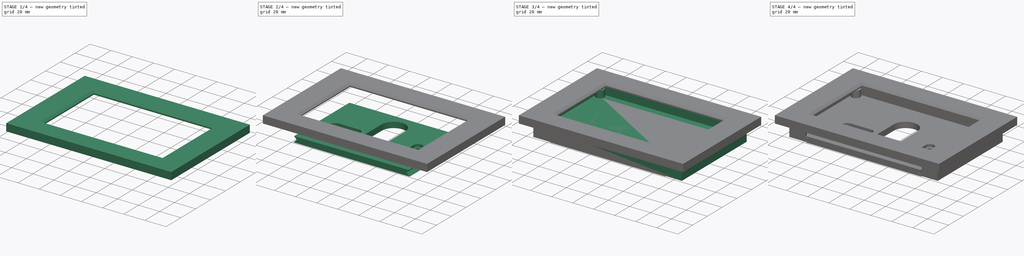
[diagram: build sequence overview — one tinted view per stage of 4, left to right]
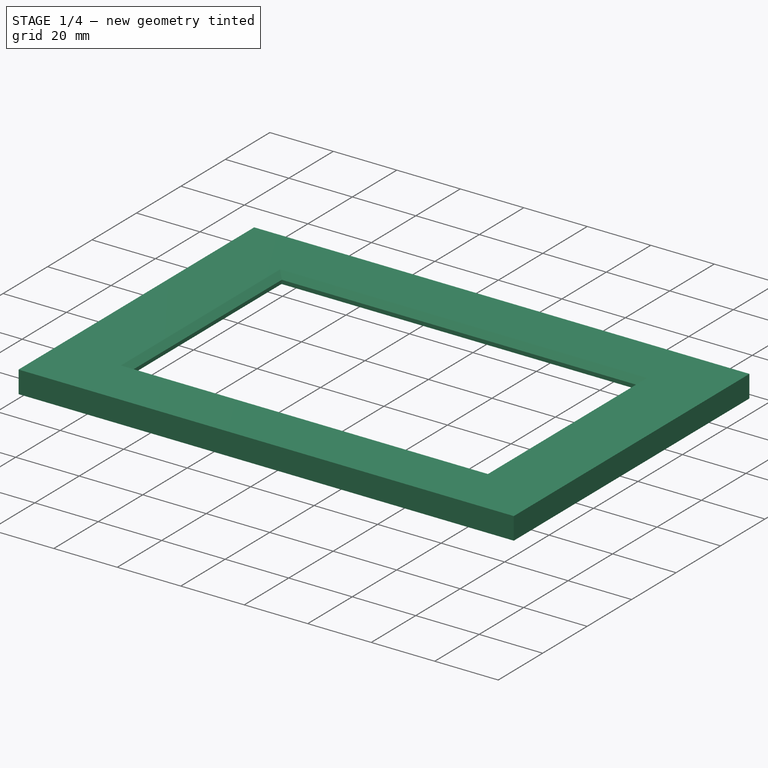
[diagram: stage 1 of 4 — iso view after this stage's code; geometry added in this stage tinted green]
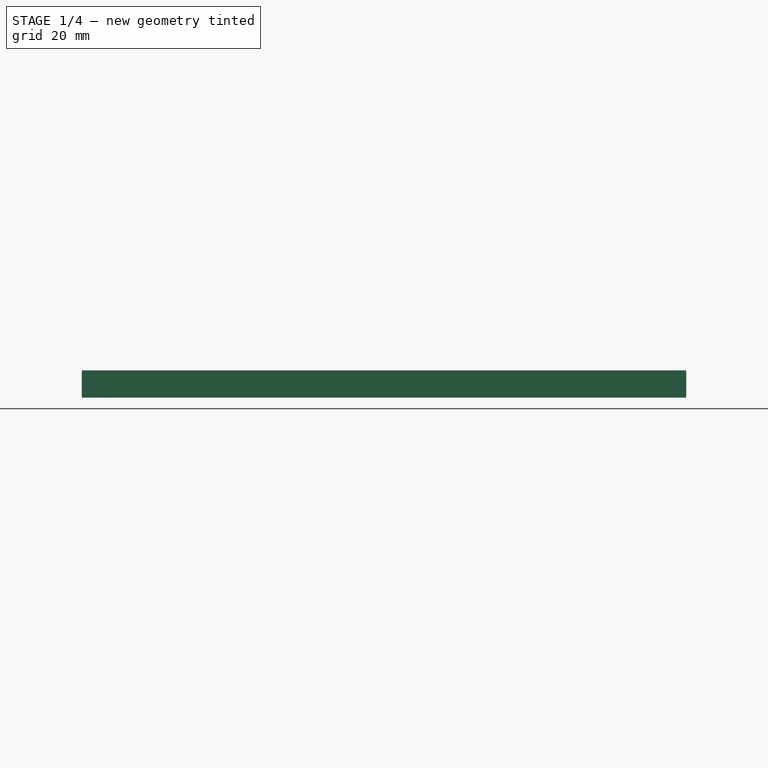
[diagram: stage 1 of 4 — front view after this stage's code; geometry added in this stage tinted green]
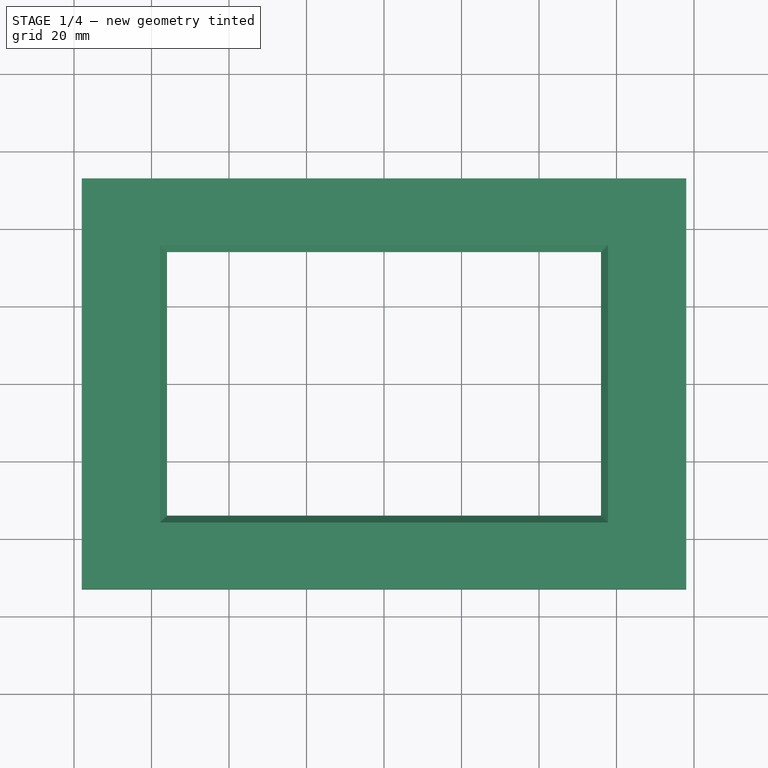
[diagram: stage 1 of 4 — top view after this stage's code; geometry added in this stage tinted green]
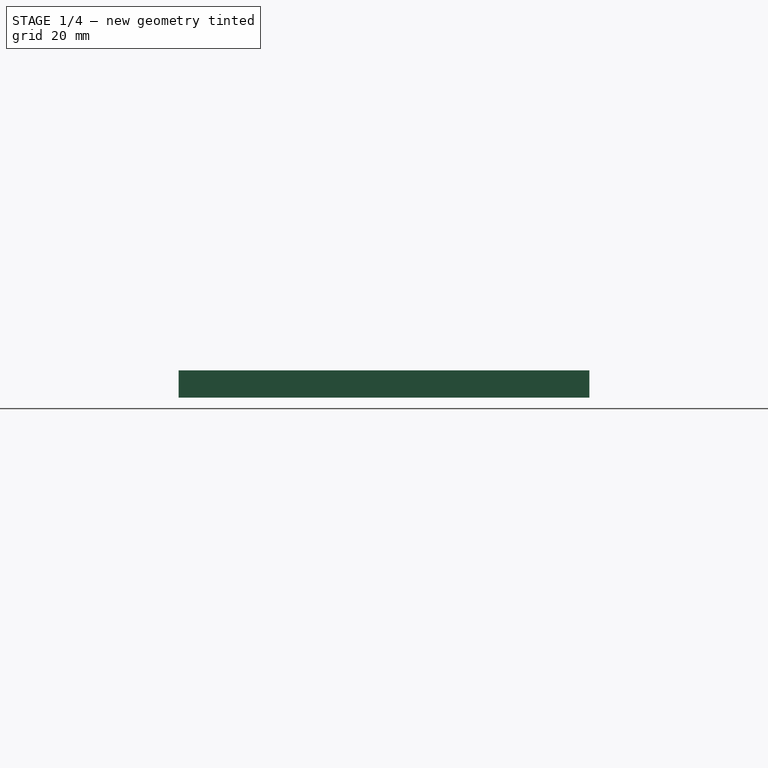
[diagram: stage 1 of 4 — right view after this stage's code; geometry added in this stage tinted green]
FCSTD DOCUMENT  (FreeCAD 0.19R)
Label: 3v2
License: All rights reserved
LicenseURL: http://en.wikipedia.org/wiki/All_rights_reserved
objects: Sketcher::SketchObject×12, PartDesign::Pocket×9, PartDesign::Pad×3, PartDesign::Body×3, PartDesign::Chamfer×1
note: 41 computed .brp shape members not serialized (recipe doc carries the construction recipe); baked Part::Feature solids carry a one-line shape summary decoded from their .brp

FEATURE [Sketcher::SketchObject] Sketch
  FullyConstrained = true
  MapMode = 5
  Support = -> [XY_Plane]
  sketch-geometry (8):
    g0: LineSegment StartX=-78 StartY=53 StartZ=0 EndX=78 EndY=53 EndZ=0
    g1: LineSegment StartX=78 StartY=53 StartZ=0 EndX=78 EndY=-53 EndZ=0
    g2: LineSegment StartX=78 StartY=-53 StartZ=0 EndX=-78 EndY=-53 EndZ=0
    g3: LineSegment StartX=-78 StartY=-53 StartZ=0 EndX=-78 EndY=53 EndZ=0
    g4: LineSegment StartX=-56 StartY=34 StartZ=0 EndX=56 EndY=34 EndZ=0
    g5: LineSegment StartX=56 StartY=34 StartZ=0 EndX=56 EndY=-34 EndZ=0
    g6: LineSegment StartX=56 StartY=-34 StartZ=0 EndX=-56 EndY=-34 EndZ=0
    g7: LineSegment StartX=-56 StartY=-34 StartZ=0 EndX=-56 EndY=34 EndZ=0
  constraints (20):
    c: Coincident(g0,g1)
    c: Coincident(g1,g2)
    c: Coincident(g2,g3)
    c: Coincident(g3,g0)
    c: Horizontal(g2)
    c: Vertical(g3)
    c: DistanceY(g3,g3) = 106
    c: DistanceX(g0,g0) = 156
    c: Symmetric(g0,g0,g-2)
    c: Symmetric(g0,g1,g-1)
    c: Coincident(g4,g5)
    c: Coincident(g5,g6)
    c: Coincident(g6,g7)
    c: Coincident(g7,g4)
    c: Horizontal(g6)
    c: Vertical(g5)
    c: Symmetric(g4,g6,g-1)
    c: Symmetric(g4,g4,g-2)
    c: DistanceX(g4,g4) = 112
    c: DistanceY(g5,g5) = 68
FEATURE [PartDesign::Pad] Pad
  Direction = (1,1,1)
  Length = 7
  Length2 = 100
  Profile = -> Sketch
  Type = 0
FEATURE [PartDesign::Body] Body002  label="mount"
  Group = -> [Sketch011,Pad002,Sketch012,Pocket008,Sketch013,Pocket009]
  Origin = -> Origin002
  Tip = -> Pocket009
FEATURE [PartDesign::Pocket] Pocket
  BaseFeature = -> Pad
  Length = 5
  Length2 = 100
  Profile = -> Sketch002
  Type = 0
FEATURE [PartDesign::Chamfer] Chamfer
  Angle = 45
  Base = -> Pocket [Edge21,Edge24,Edge23,Edge22]
  BaseFeature = -> Pocket
  ChamferType = 0
  FlipDirection = false
  Size = 1.8
  Size2 = 1
  SupportTransform = false
FEATURE [PartDesign::Body] Body  label="Front"
  Group = -> [Sketch,Pad,Sketch002,Pocket,Chamfer]
  Origin = -> Origin
  Tip = -> Chamfer
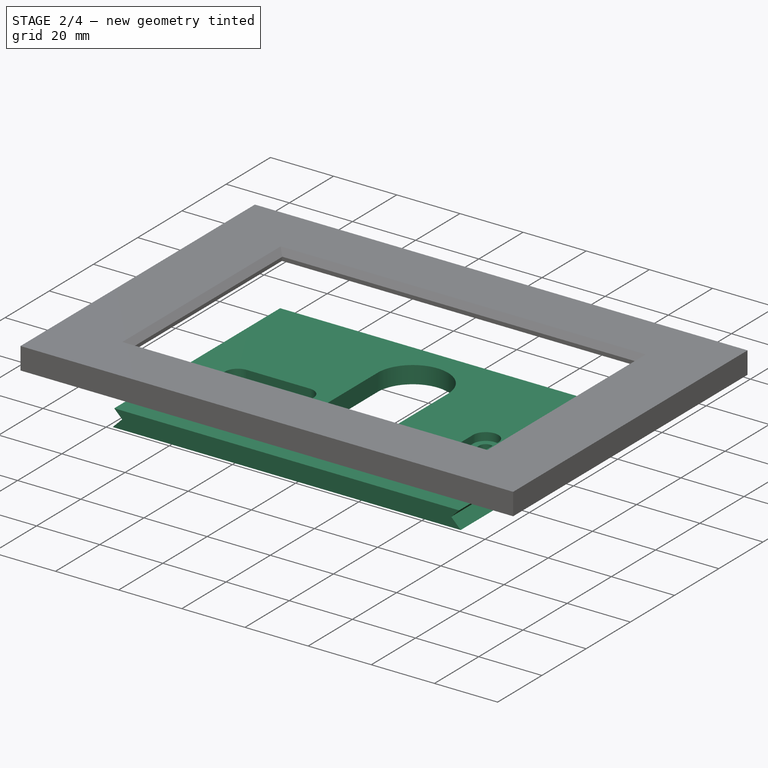
[diagram: stage 2 of 4 — iso view after this stage's code; geometry added in this stage tinted green]
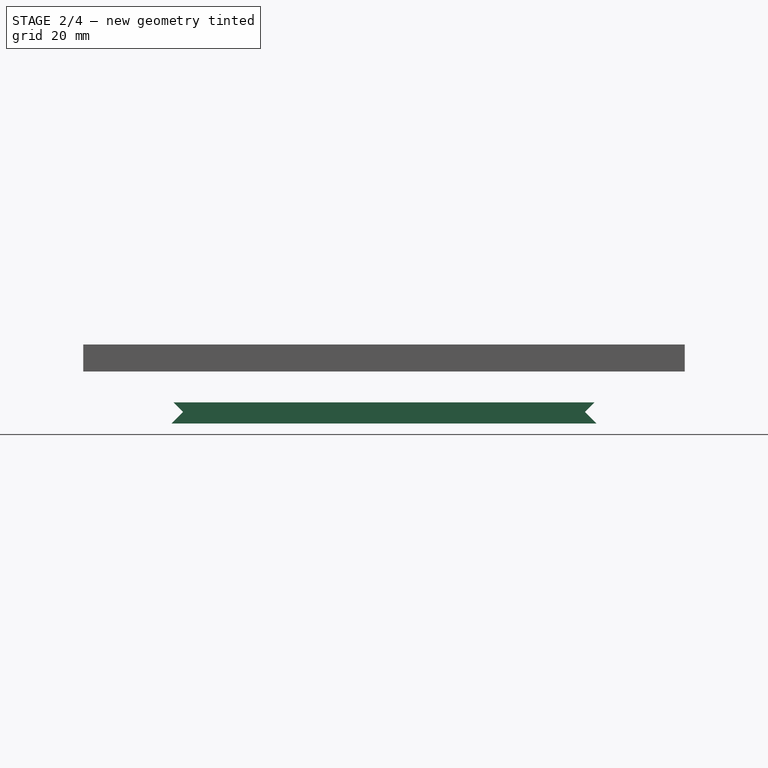
[diagram: stage 2 of 4 — front view after this stage's code; geometry added in this stage tinted green]
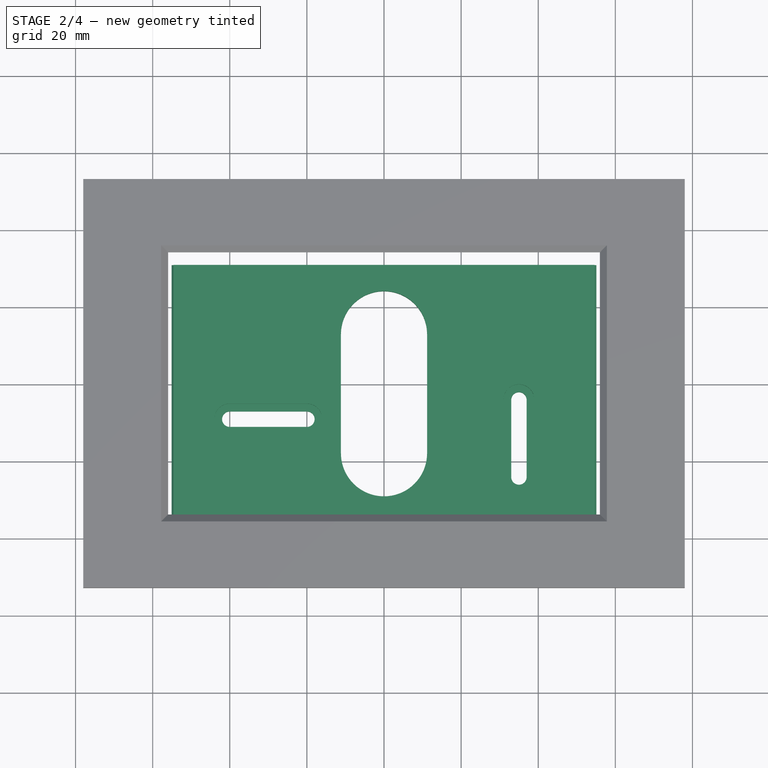
[diagram: stage 2 of 4 — top view after this stage's code; geometry added in this stage tinted green]
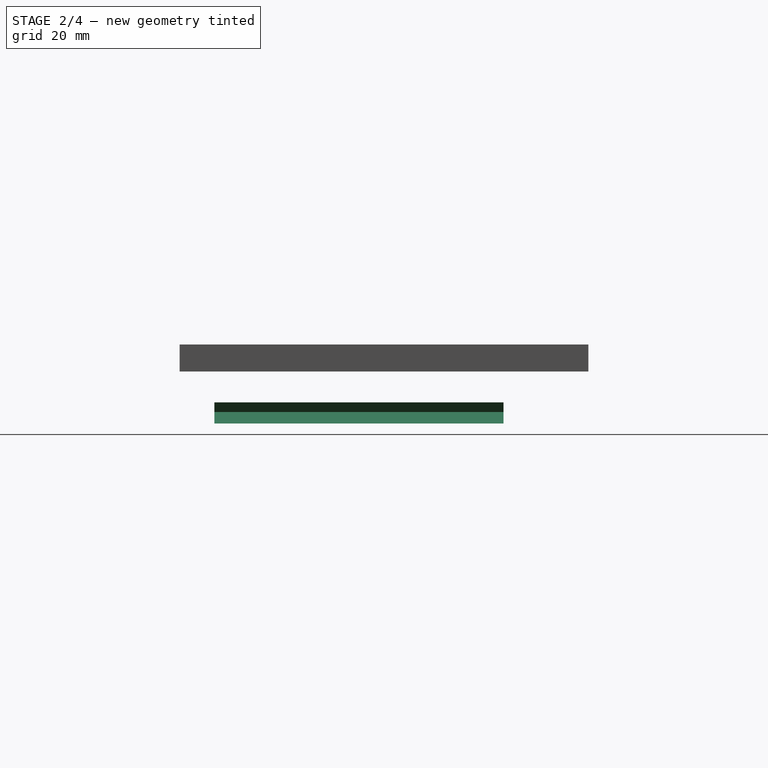
[diagram: stage 2 of 4 — right view after this stage's code; geometry added in this stage tinted green]
FEATURE [PartDesign::Body] Body001  label="Back"
  Group = -> [Sketch004,Pad001,Sketch003,Pocket001,Sketch005,Pocket002,Sketch006,Pocket003,Sketch007,Pocket004,Sketch009,Pocket006,Sketch010,Pocket007]
  Origin = -> Origin001
  Tip = -> Pocket007
FEATURE [Sketcher::SketchObject] Sketch011
  FullyConstrained = true
  MapMode = 5
  Placement = pos=(0,-44,0) rot=(1,0,0;1.5708rad)
  sketch-geometry (6):
    g0: LineSegment StartX=-54.6 StartY=-8 StartZ=0 EndX=54.6 EndY=-8 EndZ=0
    g1: LineSegment StartX=55.1 StartY=-13.5 StartZ=0 EndX=-55.1 EndY=-13.5 EndZ=0
    g2: LineSegment StartX=-54.6 StartY=-8 StartZ=0 EndX=-52.1 EndY=-10.5 EndZ=0
    g3: LineSegment StartX=-52.1 StartY=-10.5 StartZ=0 EndX=-55.1 EndY=-13.5 EndZ=0
    g4: LineSegment StartX=54.6 StartY=-8 StartZ=0 EndX=52.1 EndY=-10.5 EndZ=0
    g5: LineSegment StartX=52.1 StartY=-10.5 StartZ=0 EndX=55.1 EndY=-13.5 EndZ=0
  constraints (16):
    c: DistanceY(g0,g-1) = 8
    c: Symmetric(g0,g0,g-2)
    c: DistanceX(g0,g-1) = 54.6
    c: Coincident(g2,g0)
    c: Coincident(g3,g2)
    c: Coincident(g1,g3)
    c: Coincident(g4,g0)
    c: Coincident(g5,g4)
    c: Coincident(g5,g1)
    c: Angle(g5,g4) = 1.5708
    c: Angle(g2,g3) = 1.5708
    c: Symmetric(g1,g1,g-2)
    c: Angle(g2,g0) = 0.785398
    c: Equal(g2,g4)
    c: DistanceY(g4,g0) = 2.5
    c: DistanceY(g1,g4) = 3
FEATURE [PartDesign::Pad] Pad002
  Direction = (1,1,1)
  Length = 75
  Length2 = 100
  Placement = pos=(0,-44,0) rot=(1,0,0;1.5708rad)
  Profile = -> Sketch011
  Reversed = true
  Type = 0
FEATURE [Sketcher::SketchObject] Sketch012
  FullyConstrained = true
  MapMode = 5
  Placement = pos=(0,-44,-8) rot=(0,0,1;3.14159rad)
  Support = -> [Pad002]
  sketch-geometry (8):
    g0: ArcOfCircle CenterX=-35 CenterY=-20 CenterZ=0 NormalX=0 NormalY=0 NormalZ=1 AngleXU=0 Radius=4 StartAngle=3e-16 EndAngle=3.14159
    g1: ArcOfCircle CenterX=-35 CenterY=-40 CenterZ=0 NormalX=0 NormalY=0 NormalZ=1 AngleXU=0 Radius=4 StartAngle=3.14159 EndAngle=6.28319
    g2: LineSegment StartX=-39 StartY=-20 StartZ=0 EndX=-39 EndY=-40 EndZ=0
    g3: LineSegment StartX=-31 StartY=-20 StartZ=0 EndX=-31 EndY=-40 EndZ=0
    g4: ArcOfCircle CenterX=20 CenterY=-35 CenterZ=0 NormalX=0 NormalY=0 NormalZ=1 AngleXU=0 Radius=4 StartAngle=1.5708 EndAngle=4.71239
    g5: ArcOfCircle CenterX=40 CenterY=-35 CenterZ=0 NormalX=0 NormalY=0 NormalZ=1 AngleXU=0 Radius=4 StartAngle=4.71239 EndAngle=7.85398
    g6: LineSegment StartX=20 StartY=-39 StartZ=0 EndX=40 EndY=-39 EndZ=0
    g7: LineSegment StartX=20 StartY=-31 StartZ=0 EndX=40 EndY=-31 EndZ=0
  constraints (20):
    c: Tangent(g0,g3) = 1.5708
    c: Tangent(g0,g2) = -1.5708
    c: Tangent(g2,g1) = -1.5708
    c: Tangent(g3,g1) = 1.5708
    c: Vertical(g2)
    c: Equal(g0,g1)
    c: Tangent(g4,g7) = 1.5708
    c: Tangent(g4,g6) = -1.5708
    c: Tangent(g6,g5) = -1.5708
    c: Tangent(g7,g5) = 1.5708
    c: Horizontal(g6)
    c: Equal(g4,g5)
    c: Diameter(g5) = 8
    c: Equal(g5,g0)
    c: Equal(g7,g3)
    c: DistanceY(g5,g-1) = 35
    c: DistanceX(g0,g-1) = 35
    c: DistanceY(g0,g-1) = 20
    c: DistanceX(g-1,g4) = 20
    c: DistanceY(g2,g2) = 20
FEATURE [Sketcher::SketchObject] Sketch013
  FullyConstrained = false
  MapMode = 5
  Placement = pos=(0,-44,-6) rot=(0,0,1;3.14159rad)
  sketch-geometry (12):
    g0: ArcOfCircle CenterX=-35 CenterY=-20 CenterZ=0 NormalX=0 NormalY=0 NormalZ=1 AngleXU=0 Radius=2 StartAngle=3e-16 EndAngle=3.14159
    g1: ArcOfCircle CenterX=-35 CenterY=-40 CenterZ=0 NormalX=0 NormalY=0 NormalZ=1 AngleXU=0 Radius=2 StartAngle=3.14159 EndAngle=6.28319
    g2: LineSegment StartX=-37 StartY=-20 StartZ=0 EndX=-37 EndY=-40 EndZ=0
    g3: LineSegment StartX=-33 StartY=-20 StartZ=0 EndX=-33 EndY=-40 EndZ=0
    g4: ArcOfCircle CenterX=20 CenterY=-35 CenterZ=0 NormalX=0 NormalY=0 NormalZ=1 AngleXU=0 Radius=2 StartAngle=1.5708 EndAngle=4.71239
    g5: ArcOfCircle CenterX=40 CenterY=-35 CenterZ=0 NormalX=0 NormalY=0 NormalZ=1 AngleXU=0 Radius=2 StartAngle=4.71239 EndAngle=7.85398
    g6: LineSegment StartX=20 StartY=-37 StartZ=0 EndX=40 EndY=-37 EndZ=0
    g7: LineSegment StartX=20 StartY=-33 StartZ=0 EndX=40 EndY=-33 EndZ=0
    g8: ArcOfCircle CenterX=0 CenterY=-57.0019 CenterZ=0 NormalX=0 NormalY=0 NormalZ=1 AngleXU=0 Radius=11.1725 StartAngle=3.14159 EndAngle=6.28319
    g9: ArcOfCircle CenterX=-6e-16 CenterY=-26.1212 CenterZ=0 NormalX=0 NormalY=0 NormalZ=1 AngleXU=0 Radius=11.1725 StartAngle=0 EndAngle=3.14159
    g10: LineSegment StartX=11.1725 StartY=-57.0019 StartZ=0 EndX=11.1725 EndY=-26.1212 EndZ=0
    g11: LineSegment StartX=-11.1725 StartY=-57.0019 StartZ=0 EndX=-11.1725 EndY=-26.1212 EndZ=0
  constraints (27):
    c: Tangent(g0,g3) = 1.5708
    c: Tangent(g0,g2) = -1.5708
    c: Tangent(g2,g1) = -1.5708
    c: Tangent(g3,g1) = 1.5708
    c: Vertical(g2)
    c: Equal(g0,g1)
    c: Tangent(g4,g7) = 1.5708
    c: Tangent(g4,g6) = -1.5708
    c: Tangent(g6,g5) = -1.5708
    c: Tangent(g7,g5) = 1.5708
    c: Horizontal(g6)
    c: Equal(g4,g5)
    c: Diameter(g5) = 4
    c: Equal(g5,g0)
    c: Equal(g7,g3)
    c: DistanceX(g7,g7) = 20
    c: DistanceY(g0,g-1) = 20
    c: DistanceX(g-1,g4) = 20
    c: DistanceY(g5,g-1) = 35
    c: DistanceX(g0,g-1) = 35
    c: Tangent(g8,g11) = 1.5708
    c: Tangent(g8,g10) = -1.5708
    c: Tangent(g10,g9) = -1.5708
    c: Tangent(g11,g9) = 1.5708
    c: Vertical(g10)
    c: Equal(g8,g9)
    c: PointOnObject(g8,g-2)
FEATURE [PartDesign::Pocket] Pocket008
  BaseFeature = -> Pad002
  Length = 2.5
  Length2 = 100
  Placement = pos=(0,-44,0) rot=(1,0,0;1.5708rad)
  Profile = -> Sketch012
  Type = 0
FEATURE [PartDesign::Pocket] Pocket009
  BaseFeature = -> Pocket008
  Length = 5
  Length2 = 100
  Placement = pos=(0,-44,0) rot=(1,0,0;1.5708rad)
  Profile = -> Sketch013
  Type = 1
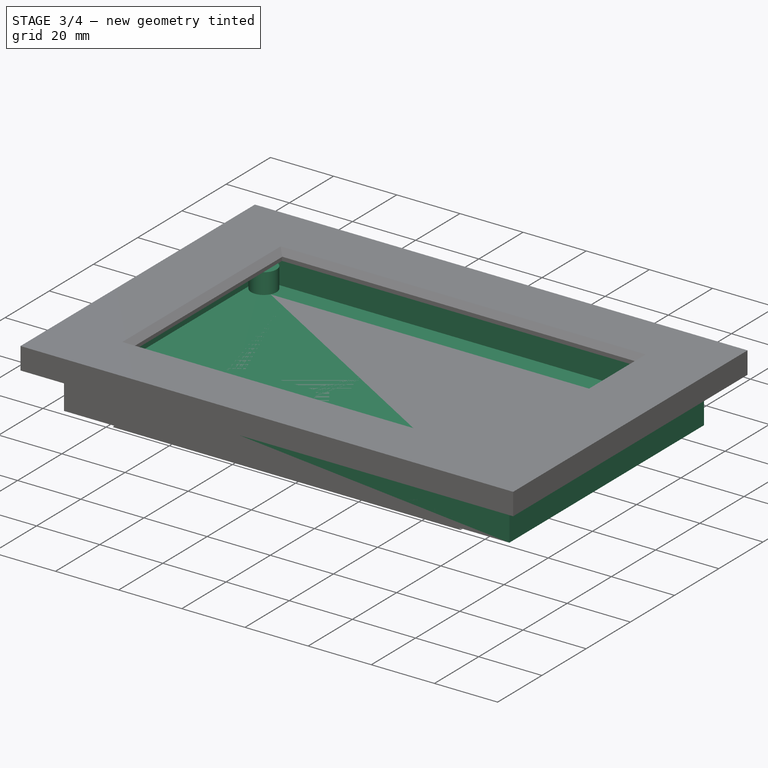
[diagram: stage 3 of 4 — iso view after this stage's code; geometry added in this stage tinted green]
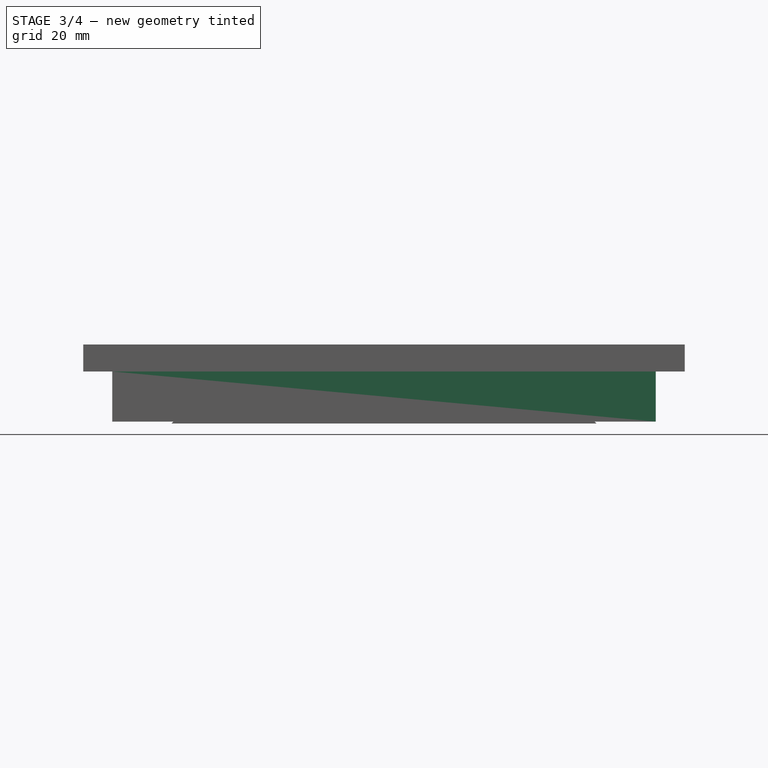
[diagram: stage 3 of 4 — front view after this stage's code; geometry added in this stage tinted green]
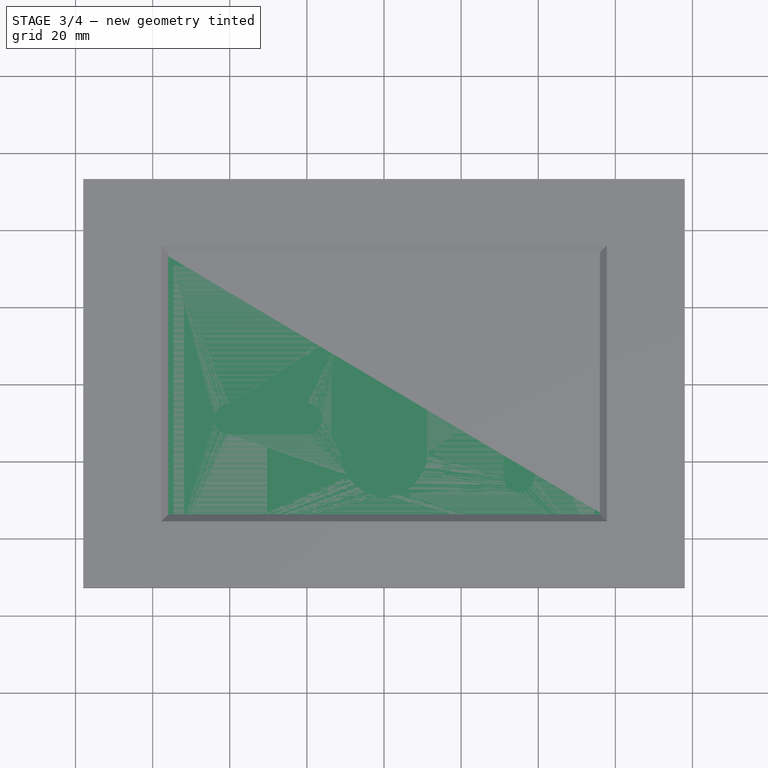
[diagram: stage 3 of 4 — top view after this stage's code; geometry added in this stage tinted green]
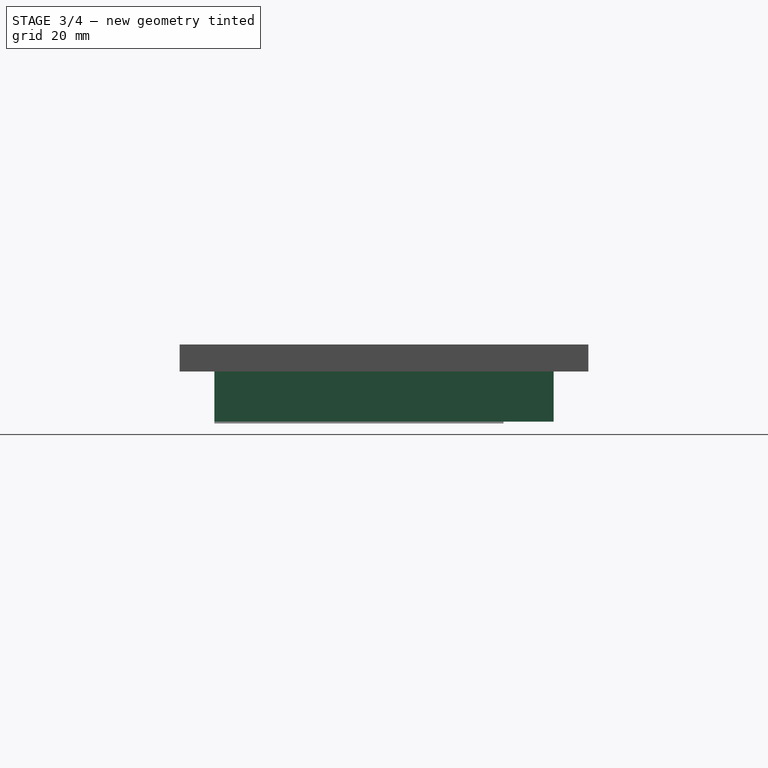
[diagram: stage 3 of 4 — right view after this stage's code; geometry added in this stage tinted green]
FEATURE [Sketcher::SketchObject] Sketch002
  FullyConstrained = true
  MapMode = 5
  Placement = pos=(0,0,0) rot=(1,0,0;3.14159rad)
  Support = -> [Pad]
  sketch-geometry (12):
    g0: LineSegment StartX=-61 StartY=36 StartZ=0 EndX=61 EndY=36 EndZ=0
    g1: LineSegment StartX=61 StartY=36 StartZ=0 EndX=61 EndY=-41 EndZ=0
    g2: LineSegment StartX=61 StartY=-41 StartZ=0 EndX=-61 EndY=-41 EndZ=0
    g3: LineSegment StartX=-61 StartY=-41 StartZ=0 EndX=-61 EndY=36 EndZ=0
    g4: Circle CenterX=-65 CenterY=36 CenterZ=0 NormalX=0 NormalY=0 NormalZ=1 AngleXU=0 Radius=1.3
    g5: Circle CenterX=65 CenterY=36 CenterZ=0 NormalX=0 NormalY=0 NormalZ=1 AngleXU=0 Radius=1.3
    g6: Circle CenterX=-65 CenterY=-41 CenterZ=0 NormalX=0 NormalY=0 NormalZ=1 AngleXU=0 Radius=1.3
    g7: Circle CenterX=65 CenterY=-41 CenterZ=0 NormalX=0 NormalY=0 NormalZ=1 AngleXU=0 Radius=1.3
    g8: LineSegment StartX=-65 StartY=36 StartZ=0 EndX=65 EndY=36 EndZ=0
    g9: LineSegment StartX=65 StartY=36 StartZ=0 EndX=65 EndY=-41 EndZ=0
    g10: LineSegment StartX=65 StartY=-41 StartZ=0 EndX=-65 EndY=-41 EndZ=0
    g11: LineSegment StartX=-65 StartY=-41 StartZ=0 EndX=-65 EndY=36 EndZ=0
  constraints (30):
    c: Coincident(g0,g1)
    c: Coincident(g1,g2)
    c: Coincident(g2,g3)
    c: Coincident(g3,g0)
    c: Horizontal(g2)
    c: Vertical(g3)
    c: DistanceX(g0,g0) = 122
    c: DistanceY(g3,g3) = 77
    c: Symmetric(g0,g0,g-2)
    c: Coincident(g8,g9)
    c: Coincident(g9,g10)
    c: Coincident(g10,g11)
    c: Coincident(g11,g8)
    c: Horizontal(g10)
    c: Vertical(g11)
    c: Coincident(g8,g4)
    c: Coincident(g9,g7)
    c: Coincident(g5,g8)
    c: Coincident(g6,g10)
    c: DistanceX(g8,g8) = 130
    c: DistanceY(g11,g11) = 77
    c: Symmetric(g5,g4,g-2)
    c: Diameter(g5) = 2.6
    c: Equal(g5,g4)
    c: Equal(g5,g6)
    c: Equal(g5,g7)
    c: PointOnObject(g0,g8)
    c: Equal(g10,g8)
    c: Equal(g2,g0)
    c: DistanceY(g7,g-1) = 41
FEATURE [Sketcher::SketchObject] Sketch004
  FullyConstrained = true
  MapMode = 5
  Support = -> [XY_Plane001]
  sketch-geometry (4):
    g0: LineSegment StartX=-70.5 StartY=44 StartZ=0 EndX=70.5 EndY=44 EndZ=0
    g1: LineSegment StartX=70.5 StartY=44 StartZ=0 EndX=70.5 EndY=-44 EndZ=0
    g2: LineSegment StartX=70.5 StartY=-44 StartZ=0 EndX=-70.5 EndY=-44 EndZ=0
    g3: LineSegment StartX=-70.5 StartY=-44 StartZ=0 EndX=-70.5 EndY=44 EndZ=0
  constraints (10):
    c: Coincident(g0,g1)
    c: Coincident(g1,g2)
    c: Coincident(g2,g3)
    c: Coincident(g3,g0)
    c: Horizontal(g2)
    c: Vertical(g3)
    c: Symmetric(g0,g0,g-2)
    c: Symmetric(g0,g1,g-1)
    c: DistanceX(g0,g0) = 141
    c: DistanceY(g3,g3) = 88
FEATURE [PartDesign::Pad] Pad001
  Direction = (1,1,1)
  Length = 13
  Length2 = 100
  Profile = -> Sketch004
  Reversed = true
  Type = 0
FEATURE [Sketcher::SketchObject] Sketch003
  FullyConstrained = true
  MapMode = 5
  Support = -> [Pad001]
  sketch-geometry (8):
    g0: LineSegment StartX=-69 StartY=38.5 StartZ=0 EndX=-69 EndY=-38.5 EndZ=0
    g1: LineSegment StartX=-65 StartY=-42.5 StartZ=0 EndX=65 EndY=-42.5 EndZ=0
    g2: LineSegment StartX=69 StartY=-38.5 StartZ=0 EndX=69 EndY=38.5 EndZ=0
    g3: LineSegment StartX=65 StartY=42.5 StartZ=0 EndX=-65 EndY=42.5 EndZ=0
    g4: ArcOfCircle CenterX=-65 CenterY=38.5 CenterZ=0 NormalX=0 NormalY=0 NormalZ=1 AngleXU=0 Radius=4 StartAngle=3.14159 EndAngle=7.85398
    g5: ArcOfCircle CenterX=65 CenterY=38.5 CenterZ=0 NormalX=0 NormalY=0 NormalZ=1 AngleXU=0 Radius=4 StartAngle=1.5708 EndAngle=6.28319
    g6: ArcOfCircle CenterX=65 CenterY=-38.5 CenterZ=0 NormalX=0 NormalY=0 NormalZ=1 AngleXU=0 Radius=4 StartAngle=6.28318 EndAngle=10.9956
    g7: ArcOfCircle CenterX=-65 CenterY=-38.5 CenterZ=0 NormalX=0 NormalY=0 NormalZ=1 AngleXU=0 Radius=4 StartAngle=4.71238 EndAngle=9.42478
  constraints (22):
    c: Horizontal(g1)
    c: Vertical(g2)
    c: Coincident(g0,g4)
    c: Coincident(g4,g3)
    c: Coincident(g3,g5)
    c: Coincident(g5,g2)
    c: Coincident(g2,g6)
    c: Coincident(g6,g1)
    c: Coincident(g7,g0)
    c: Coincident(g1,g7)
    c: Symmetric(g3,g3,g-2)
    c: Symmetric(g0,g0,g-1)
    c: Symmetric(g4,g5,g-2)
    c: DistanceX(g4,g5) = 130
    c: Symmetric(g7,g6,g-2)
    c: Symmetric(g7,g4,g-1)
    c: Equal(g0,g2)
    c: DistanceY(g6,g5) = 77
    c: Symmetric(g3,g1,g-1)
    c: DistanceY(g1,g3) = 85
    c: DistanceX(g0,g2) = 138
    c: Diameter(g4) = 8
FEATURE [PartDesign::Pocket] Pocket001
  BaseFeature = -> Pad001
  Length = 8
  Length2 = 100
  Profile = -> Sketch003
  Type = 0
FEATURE [Sketcher::SketchObject] Sketch005
  FullyConstrained = true
  MapMode = 5
  Support = -> [Pad001]
  sketch-geometry (4):
    g0: LineSegment StartX=-69 StartY=42.5 StartZ=0 EndX=69 EndY=42.5 EndZ=0
    g1: LineSegment StartX=69 StartY=42.5 StartZ=0 EndX=69 EndY=-42.5 EndZ=0
    g2: LineSegment StartX=69 StartY=-42.5 StartZ=0 EndX=-69 EndY=-42.5 EndZ=0
    g3: LineSegment StartX=-69 StartY=-42.5 StartZ=0 EndX=-69 EndY=42.5 EndZ=0
  constraints (10):
    c: Coincident(g0,g1)
    c: Coincident(g1,g2)
    c: Coincident(g2,g3)
    c: Coincident(g3,g0)
    c: Horizontal(g2)
    c: Vertical(g3)
    c: Symmetric(g0,g0,g-2)
    c: Symmetric(g0,g1,g-1)
    c: DistanceX(g0,g0) = 138
    c: DistanceY(g1,g1) = 85
FEATURE [PartDesign::Pocket] Pocket002
  BaseFeature = -> Pocket001
  Length = 1.5
  Length2 = 100
  Profile = -> Sketch005
  Type = 0
FEATURE [Sketcher::SketchObject] Sketch006
  FullyConstrained = true
  MapMode = 5
  Placement = pos=(0,0,-13) rot=(1,0,0;3.14159rad)
  Support = -> [Pocket002]
  sketch-geometry (8):
    g0: LineSegment StartX=-65 StartY=38.5 StartZ=0 EndX=65 EndY=38.5 EndZ=0
    g1: LineSegment StartX=65 StartY=38.5 StartZ=0 EndX=65 EndY=-38.5 EndZ=0
    g2: LineSegment StartX=65 StartY=-38.5 StartZ=0 EndX=-65 EndY=-38.5 EndZ=0
    g3: LineSegment StartX=-65 StartY=-38.5 StartZ=0 EndX=-65 EndY=38.5 EndZ=0
    g4: Circle CenterX=-65 CenterY=38.5 CenterZ=0 NormalX=0 NormalY=0 NormalZ=1 AngleXU=0 Radius=1.65
    g5: Circle CenterX=65 CenterY=38.5 CenterZ=0 NormalX=0 NormalY=0 NormalZ=1 AngleXU=0 Radius=1.65
    g6: Circle CenterX=65 CenterY=-38.5 CenterZ=0 NormalX=0 NormalY=0 NormalZ=1 AngleXU=0 Radius=1.65
    g7: Circle CenterX=-65 CenterY=-38.5 CenterZ=0 NormalX=0 NormalY=0 NormalZ=1 AngleXU=0 Radius=1.65
  constraints (18):
    c: Coincident(g0,g1)
    c: Coincident(g1,g2)
    c: Coincident(g2,g3)
    c: Coincident(g3,g0)
    c: Horizontal(g2)
    c: Vertical(g3)
    c: DistanceY(g1,g1) = 77
    c: DistanceX(g0,g0) = 130
    c: Symmetric(g0,g0,g-2)
    c: Symmetric(g0,g1,g-1)
    c: Coincident(g4,g0)
    c: Coincident(g5,g0)
    c: Coincident(g6,g1)
    c: Coincident(g7,g2)
    c: Diameter(g4) = 3.3
    c: Equal(g4,g7)
    c: Equal(g4,g5)
    c: Equal(g4,g6)
FEATURE [Sketcher::SketchObject] Sketch007
  FullyConstrained = true
  MapMode = 5
  Placement = pos=(0,0,-13) rot=(1,0,0;3.14159rad)
  Support = -> [Pocket002]
  sketch-geometry (8):
    g0: LineSegment StartX=-65 StartY=38.5 StartZ=0 EndX=65 EndY=38.5 EndZ=0
    g1: LineSegment StartX=65 StartY=38.5 StartZ=0 EndX=65 EndY=-38.5 EndZ=0
    g2: LineSegment StartX=65 StartY=-38.5 StartZ=0 EndX=-65 EndY=-38.5 EndZ=0
    g3: LineSegment StartX=-65 StartY=-38.5 StartZ=0 EndX=-65 EndY=38.5 EndZ=0
    g4: Circle CenterX=-65 CenterY=38.5 CenterZ=0 NormalX=0 NormalY=0 NormalZ=1 AngleXU=0 Radius=3
    g5: Circle CenterX=65 CenterY=38.5 CenterZ=0 NormalX=0 NormalY=0 NormalZ=1 AngleXU=0 Radius=3
    g6: Circle CenterX=65 CenterY=-38.5 CenterZ=0 NormalX=0 NormalY=0 NormalZ=1 AngleXU=0 Radius=3
    g7: Circle CenterX=-65 CenterY=-38.5 CenterZ=0 NormalX=0 NormalY=0 NormalZ=1 AngleXU=0 Radius=3
  constraints (18):
    c: Coincident(g0,g1)
    c: Coincident(g1,g2)
    c: Coincident(g2,g3)
    c: Coincident(g3,g0)
    c: Horizontal(g2)
    c: Vertical(g3)
    c: DistanceY(g1,g1) = 77
    c: DistanceX(g0,g0) = 130
    c: Symmetric(g0,g0,g-2)
    c: Symmetric(g0,g1,g-1)
    c: Coincident(g4,g0)
    c: Coincident(g5,g0)
    c: Coincident(g6,g1)
    c: Coincident(g7,g2)
    c: Diameter(g4) = 6
    c: Equal(g4,g7)
    c: Equal(g4,g5)
    c: Equal(g4,g6)
FEATURE [PartDesign::Pocket] Pocket003
  BaseFeature = -> Pocket002
  Length = 5
  Length2 = 100
  Profile = -> Sketch006
  Type = 1
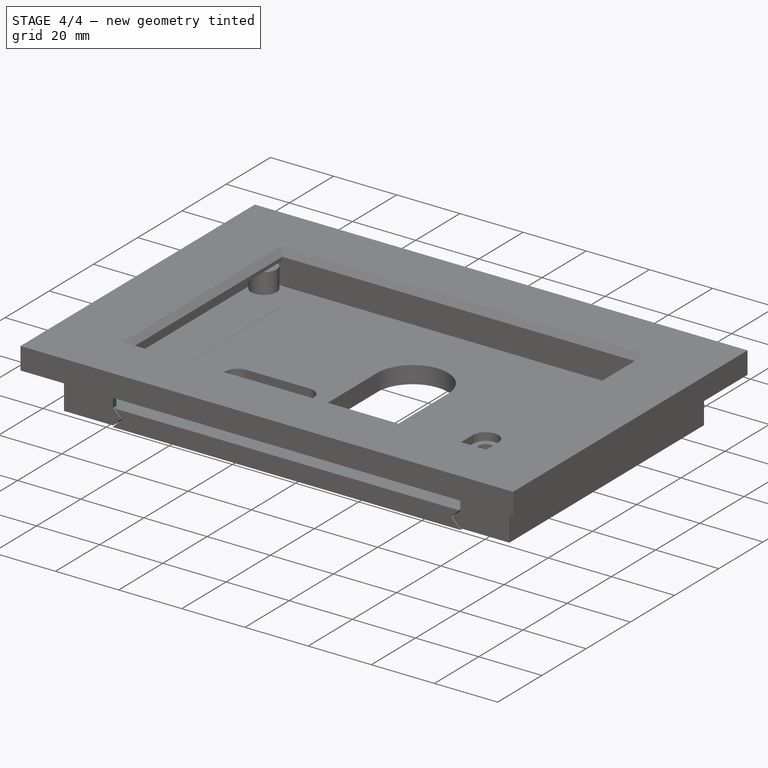
[diagram: stage 4 of 4 — iso view after this stage's code; geometry added in this stage tinted green]
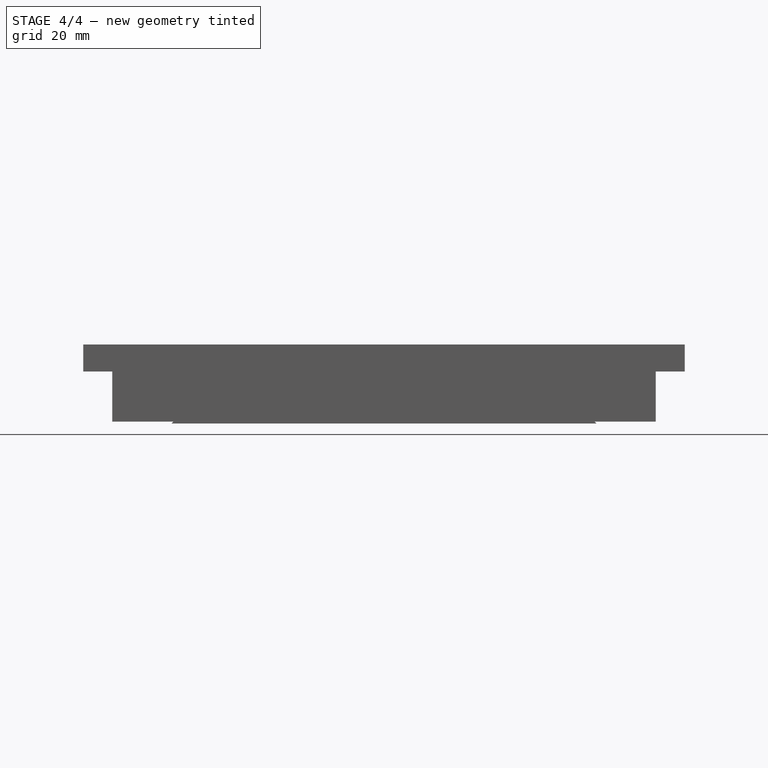
[diagram: stage 4 of 4 — front view after this stage's code; geometry added in this stage tinted green]
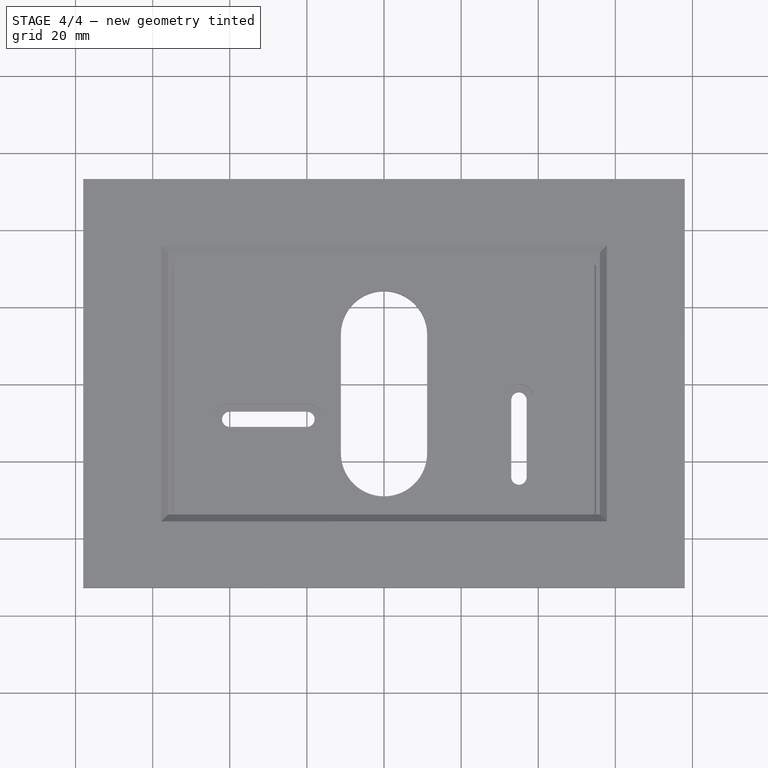
[diagram: stage 4 of 4 — top view after this stage's code; geometry added in this stage tinted green]
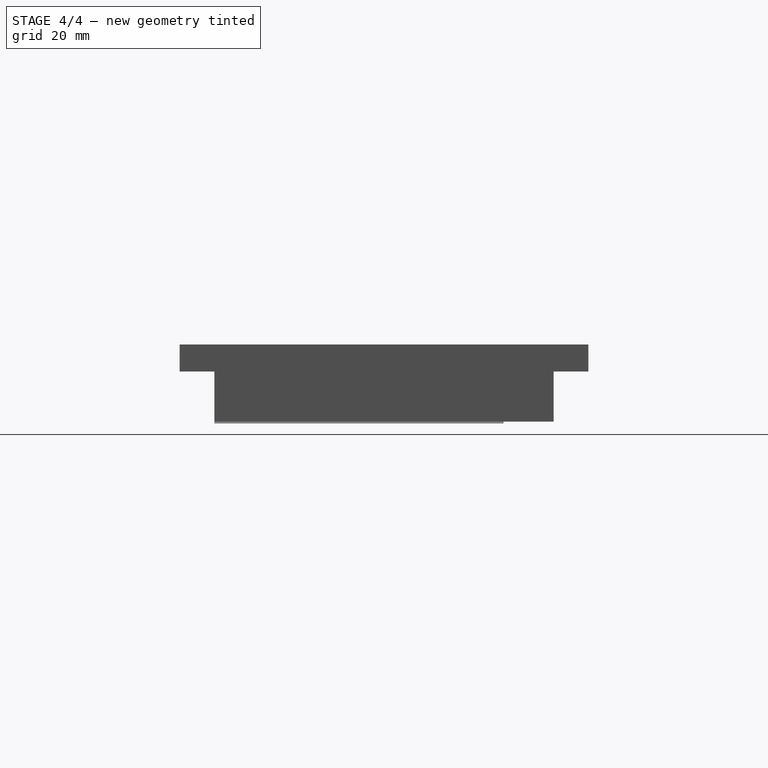
[diagram: stage 4 of 4 — right view after this stage's code; geometry added in this stage tinted green]
FEATURE [PartDesign::Pocket] Pocket004
  BaseFeature = -> Pocket003
  Length = 7
  Length2 = 100
  Profile = -> Sketch007
  Type = 0
FEATURE [Sketcher::SketchObject] Sketch009
  FullyConstrained = true
  MapMode = 5
  Placement = pos=(0,-44,0) rot=(1,0,0;1.5708rad)
  sketch-geometry (8):
    g0: LineSegment StartX=-52.5 StartY=-10.5 StartZ=0 EndX=-55 EndY=-8 EndZ=0
    g1: LineSegment StartX=55 StartY=-8 StartZ=0 EndX=52.5 EndY=-10.5 EndZ=0
    g2: LineSegment StartX=-52.5 StartY=-10.5 StartZ=0 EndX=-55 EndY=-13 EndZ=0
    g3: LineSegment StartX=52.5 StartY=-10.5 StartZ=0 EndX=55 EndY=-13 EndZ=0
    g4: LineSegment StartX=55 StartY=-13 StartZ=0 EndX=-55 EndY=-13 EndZ=0
    g5: LineSegment StartX=-55 StartY=-8 StartZ=0 EndX=-55 EndY=0 EndZ=0
    g6: LineSegment StartX=55 StartY=-8 StartZ=0 EndX=55 EndY=0 EndZ=0
    g7: LineSegment StartX=55 StartY=0 StartZ=0 EndX=-55 EndY=0 EndZ=0
  constraints (22):
    c: DistanceY(g1,g-1) = 8
    c: Equal(g1,g0)
    c: DistanceY(g1,g1) = 2.5
    c: Symmetric(g0,g1,g-2)
    c: DistanceX(g0,g-1) = 55
    c: Coincident(g2,g0)
    c: Coincident(g3,g1)
    c: Coincident(g4,g3)
    c: Coincident(g4,g2)
    c: DistanceY(g3,g3) = 2.5
    c: Angle(g3,g1) = 1.5708
    c: Coincident(g5,g0)
    c: PointOnObject(g5,g-1)
    c: Vertical(g5)
    c: Coincident(g6,g1)
    c: PointOnObject(g6,g-1)
    c: Vertical(g6)
    c: Coincident(g7,g6)
    c: Coincident(g7,g5)
    c: Equal(g7,g4)
    c: Symmetric(g3,g2,g-2)
    c: Equal(g0,g2)
FEATURE [PartDesign::Pocket] Pocket006
  BaseFeature = -> Pocket004
  Length = 75
  Length2 = 100
  Profile = -> Sketch009
  Type = 0
FEATURE [Sketcher::SketchObject] Sketch010
  FullyConstrained = true
  MapMode = 5
  Placement = pos=(-70.5,0,0) rot=(0.57735,-0.57735,-0.57735;2.0944rad)
  Support = -> [Pocket006]
  sketch-geometry (4):
    g0: LineSegment StartX=-6 StartY=0 StartZ=0 EndX=6 EndY=0 EndZ=0
    g1: LineSegment StartX=6 StartY=0 StartZ=0 EndX=6 EndY=-5 EndZ=0
    g2: LineSegment StartX=6 StartY=-5 StartZ=0 EndX=-6 EndY=-5 EndZ=0
    g3: LineSegment StartX=-6 StartY=-5 StartZ=0 EndX=-6 EndY=0 EndZ=0
  constraints (11):
    c: Coincident(g0,g1)
    c: Coincident(g1,g2)
    c: Coincident(g2,g3)
    c: Coincident(g3,g0)
    c: Horizontal(g2)
    c: Vertical(g1)
    c: Vertical(g3)
    c: Symmetric(g0,g0,g-2)
    c: PointOnObject(g0,g-1)
    c: DistanceX(g0,g0) = 12
    c: DistanceY(g1,g1) = 5
FEATURE [PartDesign::Pocket] Pocket007
  BaseFeature = -> Pocket006
  Length = 5
  Length2 = 100
  Profile = -> Sketch010
  Type = 2
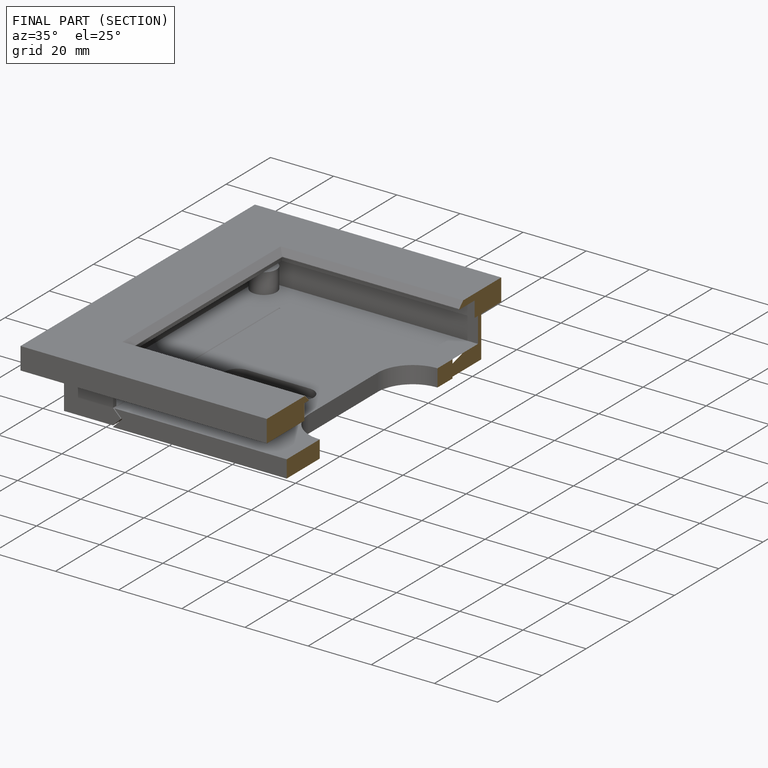
[diagram: finished part — half-section view (interior)]
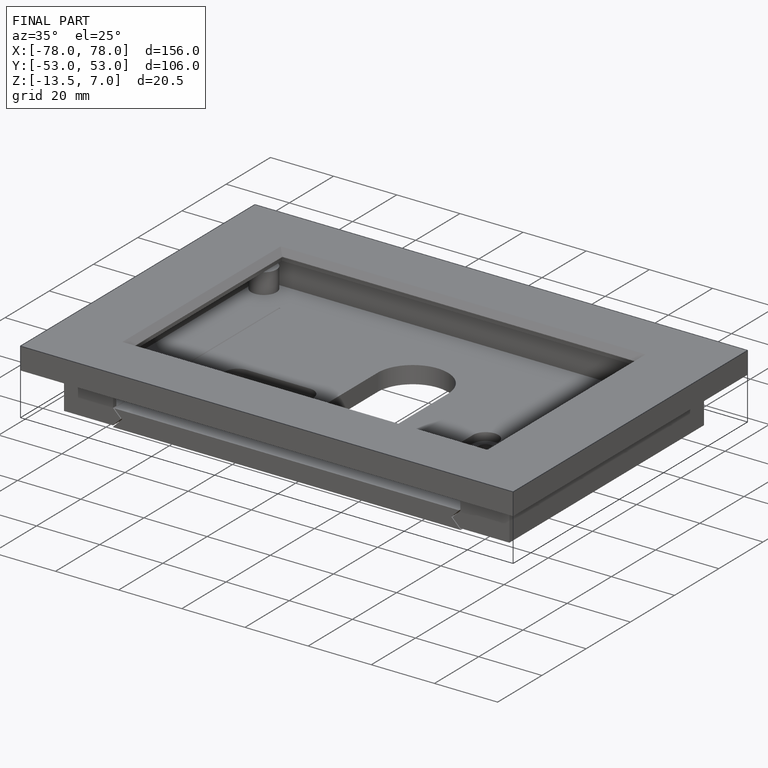
[diagram: finished part — iso view with bounding-box wireframe]
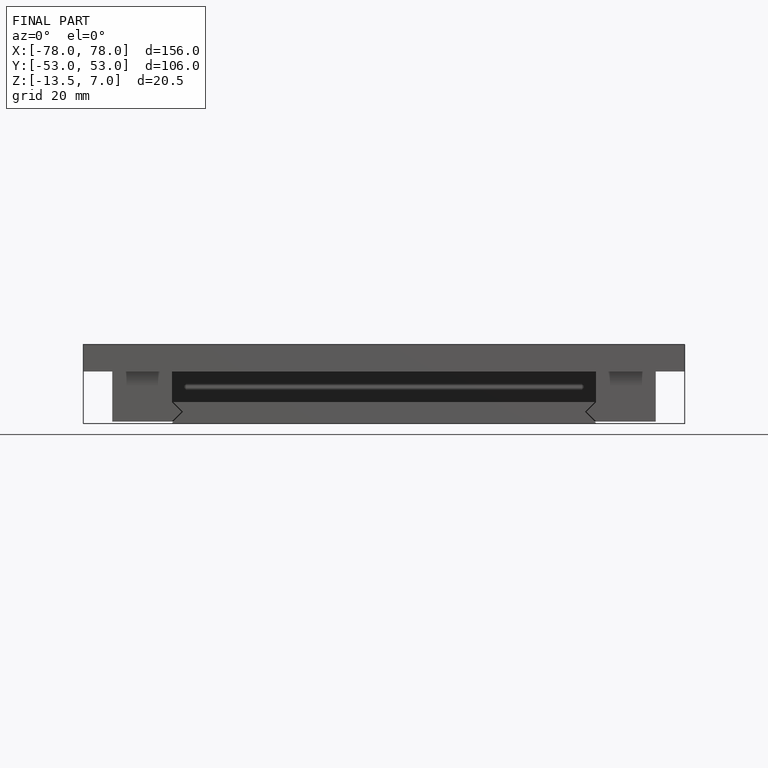
[diagram: finished part — front view with bounding-box wireframe]
